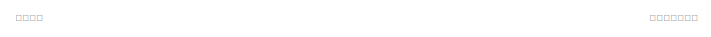
[diagram: root canvas - part 1/2, top center region]
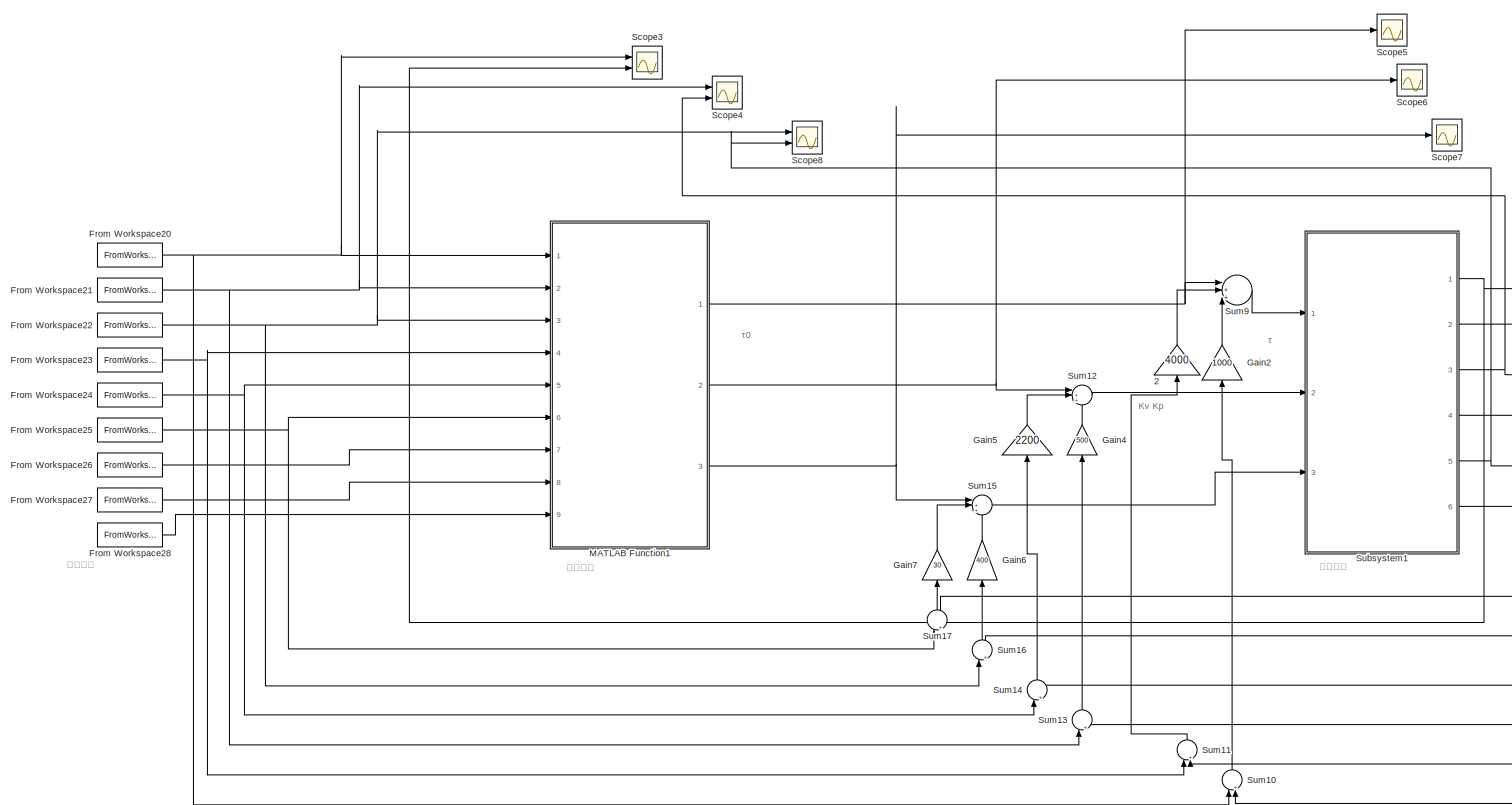
[diagram: root canvas - part 2/2, most of the canvas]
MODEL slx_a6d691054f92
KIND model
CONFIG AbsTol = auto
CONFIG EnableMultiTasking = off
CONFIG FixedStep = 0.00001
CONFIG MaxStep = 0.00001
CONFIG MinStep = 0.000005
CONFIG RelTol = 1e-3
CONFIG SampleTimeConstraint = Unconstrained
CONFIG Solver = ode45
CONFIG SolverName = ode45
CONFIG StartTime = 0.0
CONFIG StopTime = 36
BLOCK [Gain] 2
  Gain = 4000
  OutDataTypeStr = Inherit: Inherit via internal rule
  ParamDataTypeStr = Inherit: Inherit via internal rule
  SaturateOnIntegerOverflow = off
BLOCK [FromWorkspace] From Workspace20
  SampleTime = 0
  VariableName = q1
  ZeroCross = on
BLOCK [FromWorkspace] From Workspace21
  SampleTime = 0
  VariableName = q2
  ZeroCross = on
BLOCK [FromWorkspace] From Workspace22
  SampleTime = 0
  VariableName = q3
  ZeroCross = on
BLOCK [FromWorkspace] From Workspace23
  SampleTime = 0
  VariableName = qd1
  ZeroCross = on
BLOCK [FromWorkspace] From Workspace24
  SampleTime = 0
  VariableName = qd2
  ZeroCross = on
BLOCK [FromWorkspace] From Workspace25
  SampleTime = 0
  VariableName = qd3
  ZeroCross = on
BLOCK [FromWorkspace] From Workspace26
  SampleTime = 0
  VariableName = qdd1
  ZeroCross = on
BLOCK [FromWorkspace] From Workspace27
  SampleTime = 0
  VariableName = qdd2
  ZeroCross = on
BLOCK [FromWorkspace] From Workspace28
  SampleTime = 0
  VariableName = qdd3
  ZeroCross = on
BLOCK [Gain] Gain2
  Gain = 1000
  OutDataTypeStr = Inherit: Inherit via internal rule
  ParamDataTypeStr = Inherit: Inherit via internal rule
  SaturateOnIntegerOverflow = off
BLOCK [Gain] Gain4
  Gain = 500
  OutDataTypeStr = Inherit: Inherit via internal rule
  ParamDataTypeStr = Inherit: Inherit via internal rule
  SaturateOnIntegerOverflow = off
BLOCK [Gain] Gain5
  Gain = 2200
  OutDataTypeStr = Inherit: Inherit via internal rule
  ParamDataTypeStr = Inherit: Inherit via internal rule
  SaturateOnIntegerOverflow = off
BLOCK [Gain] Gain6
  Gain = 400
  OutDataTypeStr = Inherit: Inherit via internal rule
  ParamDataTypeStr = Inherit: Inherit via internal rule
  SaturateOnIntegerOverflow = off
BLOCK [Gain] Gain7
  Gain = 30
  OutDataTypeStr = Inherit: Inherit via internal rule
  ParamDataTypeStr = Inherit: Inherit via internal rule
  SaturateOnIntegerOverflow = off
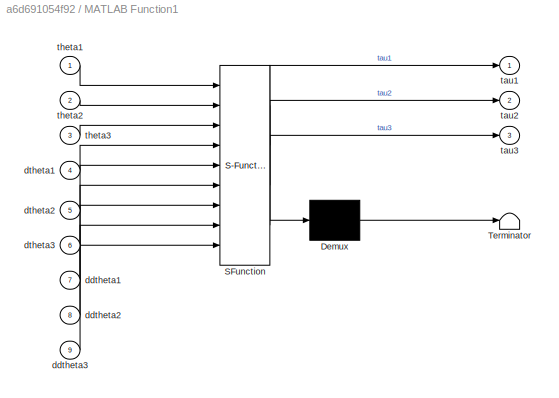
BLOCK [SubSystem] MATLAB Function1
  ErrorFcn = Stateflow.Translate.translate
  PermitHierarchicalResolution = ExplicitOnly
  Ports = [9, 3]
  RequestExecContextInheritance = off
  SFBlockType = MATLAB Function
  TreatAsAtomicUnit = on
BLOCK [Demux] MATLAB Function1/ Demux 
  Outputs = 1
  Ports = [1, 1]
BLOCK [S-Function] MATLAB Function1/ SFunction 
  EnableBusSupport = on
  FunctionName = sf_sfun
  PortCounts = [9 4]
  Ports = [9, 4]
  SFcnIsStateOwnerBlock = off
  SFunctionDeploymentMode = off
  Tag = Stateflow S-Function simulation 4
BLOCK [Terminator] MATLAB Function1/ Terminator 
BLOCK [Inport] MATLAB Function1/ddtheta1
  IconDisplay = Port number
  Port = 7
BLOCK [Inport] MATLAB Function1/ddtheta2
  IconDisplay = Port number
  Port = 8
BLOCK [Inport] MATLAB Function1/ddtheta3
  IconDisplay = Port number
  Port = 9
BLOCK [Inport] MATLAB Function1/dtheta1
  IconDisplay = Port number
  Port = 4
BLOCK [Inport] MATLAB Function1/dtheta2
  IconDisplay = Port number
  Port = 5
BLOCK [Inport] MATLAB Function1/dtheta3
  IconDisplay = Port number
  Port = 6
BLOCK [Outport] MATLAB Function1/tau1
  IconDisplay = Port number
BLOCK [Outport] MATLAB Function1/tau2
  IconDisplay = Port number
  Port = 2
BLOCK [Outport] MATLAB Function1/tau3
  IconDisplay = Port number
  Port = 3
BLOCK [Inport] MATLAB Function1/theta1
  IconDisplay = Port number
BLOCK [Inport] MATLAB Function1/theta2
  IconDisplay = Port number
  Port = 2
BLOCK [Inport] MATLAB Function1/theta3
  IconDisplay = Port number
  Port = 3
BLOCK [Scope] Scope3
  Floating = off
  NumInputPorts = 2
  Ports = [2]
  ScopeSpecificationString = Simulink.scopes.TimeScopeBlockCfg('CurrentConfiguration', extmgr.ConfigurationSet(extmgr.Configuration('Core','General UI',true),extmgr.Configuration('Core','Source UI',true),extmgr.Configuration('Sources','WiredSimulink',true,'DataLoggingVariableName','ScopeData1'),extmgr.Configuration('Visuals','Time Domain',true,'SerializedDisplays',{struct('MinYLimReal','-0.39421','MaxYLimReal','3.54787','YLab...<+1470ch>
BLOCK [Scope] Scope4
  Floating = off
  NumInputPorts = 2
  Ports = [2]
  ScopeSpecificationString = Simulink.scopes.TimeScopeBlockCfg('CurrentConfiguration', extmgr.ConfigurationSet(extmgr.Configuration('Core','General UI',true),extmgr.Configuration('Core','Source UI',true),extmgr.Configuration('Sources','WiredSimulink',true,'DataLoggingVariableName','ScopeData4'),extmgr.Configuration('Visuals','Time Domain',true,'SerializedDisplays',{struct('MinYLimReal','-3.07476','MaxYLimReal','0.34165','YLab...<+1469ch>
BLOCK [Scope] Scope5
  Floating = off
  NumInputPorts = 1
  Ports = [1]
  ScopeSpecificationString = Simulink.scopes.TimeScopeBlockCfg('CurrentConfiguration', extmgr.ConfigurationSet(extmgr.Configuration('Core','General UI',true),extmgr.Configuration('Core','Source UI',true),extmgr.Configuration('Sources','WiredSimulink',true,'DataLoggingVariableName','tau_p1','DataLogging',true),extmgr.Configuration('Visuals','Time Domain',true,'SerializedDisplays',{struct('MinYLimReal','-338.8881','MaxYLimReal'...<+1432ch>
BLOCK [Scope] Scope6
  Floating = off
  NumInputPorts = 1
  Ports = [1]
  ScopeSpecificationString = Simulink.scopes.TimeScopeBlockCfg('CurrentConfiguration', extmgr.ConfigurationSet(extmgr.Configuration('Core','General UI',true),extmgr.Configuration('Core','Source UI',true),extmgr.Configuration('Sources','WiredSimulink',true,'DataLoggingVariableName','tau_p2','DataLogging',true),extmgr.Configuration('Visuals','Time Domain',true,'SerializedDisplays',{struct('MinYLimReal','-22.49931','MaxYLimReal'...<+1405ch>
BLOCK [Scope] Scope7
  Floating = off
  NumInputPorts = 1
  Ports = [1]
  ScopeSpecificationString = Simulink.scopes.TimeScopeBlockCfg('CurrentConfiguration', extmgr.ConfigurationSet(extmgr.Configuration('Core','General UI',true),extmgr.Configuration('Core','Source UI',true),extmgr.Configuration('Sources','WiredSimulink',true,'DataLoggingVariableName','tau_p3','DataLogging',true),extmgr.Configuration('Visuals','Time Domain',true,'SerializedDisplays',{struct('MinYLimReal','48.2523','MaxYLimReal','...<+1397ch>
BLOCK [Scope] Scope8
  Floating = off
  NumInputPorts = 2
  Ports = [2]
  ScopeSpecificationString = Simulink.scopes.TimeScopeBlockCfg('CurrentConfiguration', extmgr.ConfigurationSet(extmgr.Configuration('Core','General UI',true),extmgr.Configuration('Core','Source UI',true),extmgr.Configuration('Sources','WiredSimulink',true,'DataLoggingVariableName','ScopeData11'),extmgr.Configuration('Visuals','Time Domain',true,'SerializedDisplays',{struct('MinYLimReal','-2.12296','MaxYLimReal','0.37301','YLa...<+1487ch>
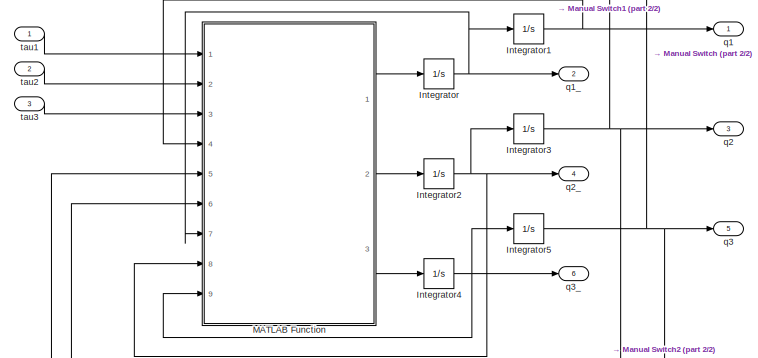
[diagram: Subsystem1 - part 1/2, middle left region]
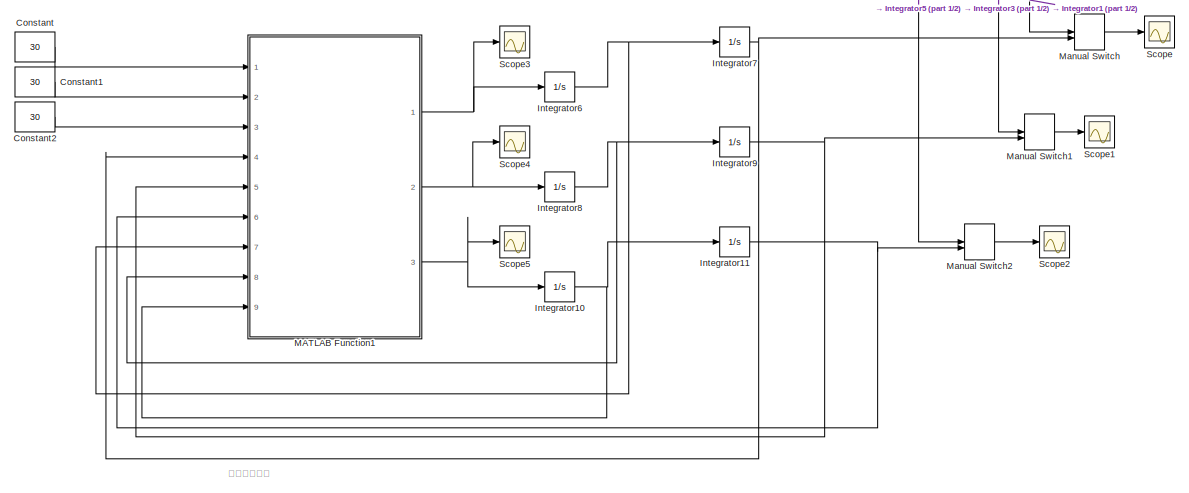
[diagram: Subsystem1 - part 2/2, right side, full height]
BLOCK [SubSystem] Subsystem1
  Ports = [3, 6]
  RequestExecContextInheritance = off
BLOCK [Constant] Subsystem1/Constant
  Commented = on
  Value = 30
BLOCK [Constant] Subsystem1/Constant1
  Commented = on
  Value = 30
BLOCK [Constant] Subsystem1/Constant2
  Commented = on
  Value = 30
BLOCK [Integrator] Subsystem1/Integrator
  LimitOutput = on
  LowerSaturationLimit = -1000
  Ports = [1, 1]
  UpperSaturationLimit = 1000
BLOCK [Integrator] Subsystem1/Integrator1
  LimitOutput = on
  LowerSaturationLimit = -1000
  Ports = [1, 1]
  UpperSaturationLimit = 1000
BLOCK [Integrator] Subsystem1/Integrator10
  Commented = on
  Ports = [1, 1]
BLOCK [Integrator] Subsystem1/Integrator11
  Commented = on
  Ports = [1, 1]
BLOCK [Integrator] Subsystem1/Integrator2
  LimitOutput = on
  LowerSaturationLimit = -1000
  Ports = [1, 1]
  UpperSaturationLimit = 1000
BLOCK [Integrator] Subsystem1/Integrator3
  LimitOutput = on
  LowerSaturationLimit = -1000
  Ports = [1, 1]
  UpperSaturationLimit = 1000
BLOCK [Integrator] Subsystem1/Integrator4
  LimitOutput = on
  LowerSaturationLimit = -1000
  Ports = [1, 1]
  UpperSaturationLimit = 1000
BLOCK [Integrator] Subsystem1/Integrator5
  LimitOutput = on
  LowerSaturationLimit = -1000
  Ports = [1, 1]
  UpperSaturationLimit = 1000
BLOCK [Integrator] Subsystem1/Integrator6
  Commented = on
  Ports = [1, 1]
BLOCK [Integrator] Subsystem1/Integrator7
  Commented = on
  Ports = [1, 1]
BLOCK [Integrator] Subsystem1/Integrator8
  Commented = on
  Ports = [1, 1]
BLOCK [Integrator] Subsystem1/Integrator9
  Commented = on
  Ports = [1, 1]
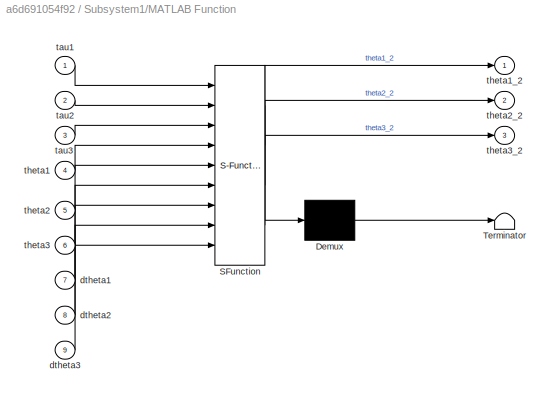
BLOCK [SubSystem] Subsystem1/MATLAB Function
  ErrorFcn = Stateflow.Translate.translate
  PermitHierarchicalResolution = ExplicitOnly
  Ports = [9, 3]
  RequestExecContextInheritance = off
  SFBlockType = MATLAB Function
  TreatAsAtomicUnit = on
BLOCK [Demux] Subsystem1/MATLAB Function/ Demux 
  Outputs = 1
  Ports = [1, 1]
BLOCK [S-Function] Subsystem1/MATLAB Function/ SFunction 
  EnableBusSupport = on
  FunctionName = sf_sfun
  PortCounts = [9 4]
  Ports = [9, 4]
  SFcnIsStateOwnerBlock = off
  SFunctionDeploymentMode = off
  Tag = Stateflow S-Function simulation 5
BLOCK [Terminator] Subsystem1/MATLAB Function/ Terminator 
BLOCK [Inport] Subsystem1/MATLAB Function/dtheta1
  IconDisplay = Port number
  Port = 7
BLOCK [Inport] Subsystem1/MATLAB Function/dtheta2
  IconDisplay = Port number
  Port = 8
BLOCK [Inport] Subsystem1/MATLAB Function/dtheta3
  IconDisplay = Port number
  Port = 9
BLOCK [Inport] Subsystem1/MATLAB Function/tau1
  IconDisplay = Port number
BLOCK [Inport] Subsystem1/MATLAB Function/tau2
  IconDisplay = Port number
  Port = 2
BLOCK [Inport] Subsystem1/MATLAB Function/tau3
  IconDisplay = Port number
  Port = 3
BLOCK [Inport] Subsystem1/MATLAB Function/theta1
  IconDisplay = Port number
  Port = 4
BLOCK [Outport] Subsystem1/MATLAB Function/theta1_2
  IconDisplay = Port number
BLOCK [Inport] Subsystem1/MATLAB Function/theta2
  IconDisplay = Port number
  Port = 5
BLOCK [Outport] Subsystem1/MATLAB Function/theta2_2
  IconDisplay = Port number
  Port = 2
BLOCK [Inport] Subsystem1/MATLAB Function/theta3
  IconDisplay = Port number
  Port = 6
BLOCK [Outport] Subsystem1/MATLAB Function/theta3_2
  IconDisplay = Port number
  Port = 3
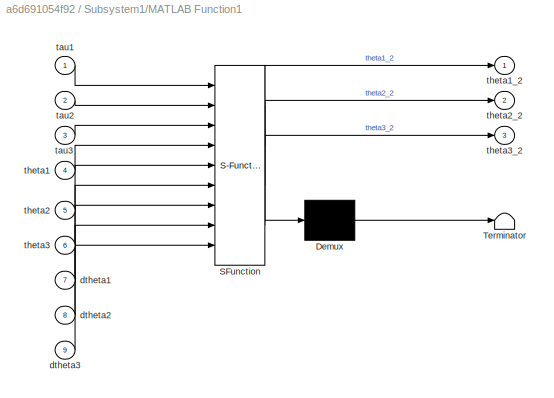
BLOCK [SubSystem] Subsystem1/MATLAB Function1
  Commented = on
  ErrorFcn = Stateflow.Translate.translate
  PermitHierarchicalResolution = ExplicitOnly
  Ports = [9, 3]
  RequestExecContextInheritance = off
  SFBlockType = MATLAB Function
  TreatAsAtomicUnit = on
BLOCK [Demux] Subsystem1/MATLAB Function1/ Demux 
  Outputs = 1
  Ports = [1, 1]
BLOCK [S-Function] Subsystem1/MATLAB Function1/ SFunction 
  EnableBusSupport = on
  FunctionName = sf_sfun
  PortCounts = [9 4]
  Ports = [9, 4]
  SFcnIsStateOwnerBlock = off
  SFunctionDeploymentMode = off
  Tag = Stateflow S-Function simulation 6
BLOCK [Terminator] Subsystem1/MATLAB Function1/ Terminator 
BLOCK [Inport] Subsystem1/MATLAB Function1/dtheta1
  IconDisplay = Port number
  Port = 7
BLOCK [Inport] Subsystem1/MATLAB Function1/dtheta2
  IconDisplay = Port number
  Port = 8
BLOCK [Inport] Subsystem1/MATLAB Function1/dtheta3
  IconDisplay = Port number
  Port = 9
BLOCK [Inport] Subsystem1/MATLAB Function1/tau1
  IconDisplay = Port number
BLOCK [Inport] Subsystem1/MATLAB Function1/tau2
  IconDisplay = Port number
  Port = 2
BLOCK [Inport] Subsystem1/MATLAB Function1/tau3
  IconDisplay = Port number
  Port = 3
BLOCK [Inport] Subsystem1/MATLAB Function1/theta1
  IconDisplay = Port number
  Port = 4
BLOCK [Outport] Subsystem1/MATLAB Function1/theta1_2
  IconDisplay = Port number
BLOCK [Inport] Subsystem1/MATLAB Function1/theta2
  IconDisplay = Port number
  Port = 5
BLOCK [Outport] Subsystem1/MATLAB Function1/theta2_2
  IconDisplay = Port number
  Port = 2
BLOCK [Inport] Subsystem1/MATLAB Function1/theta3
  IconDisplay = Port number
  Port = 6
BLOCK [Outport] Subsystem1/MATLAB Function1/theta3_2
  IconDisplay = Port number
  Port = 3
BLOCK [ManualSwitch] Subsystem1/Manual Switch
BLOCK [ManualSwitch] Subsystem1/Manual Switch1
BLOCK [ManualSwitch] Subsystem1/Manual Switch2
BLOCK [Scope] Subsystem1/Scope
  Floating = off
  NumInputPorts = 1
  Ports = [1]
  ScopeSpecificationString = Simulink.scopes.TimeScopeBlockCfg('CurrentConfiguration', extmgr.ConfigurationSet(extmgr.Configuration('Core','General UI',true),extmgr.Configuration('Core','Source UI',true),extmgr.Configuration('Sources','WiredSimulink',true,'DataLoggingVariableName','ScopeQ1','DataLogging',true),extmgr.Configuration('Visuals','Time Domain',true,'SerializedDisplays',{struct('MinYLimReal','-0.39291','MaxYLimReal'...<+1388ch>
BLOCK [Scope] Subsystem1/Scope1
  Floating = off
  NumInputPorts = 1
  Ports = [1]
  ScopeSpecificationString = Simulink.scopes.TimeScopeBlockCfg('CurrentConfiguration', extmgr.ConfigurationSet(extmgr.Configuration('Core','General UI',true),extmgr.Configuration('Core','Source UI',true),extmgr.Configuration('Sources','WiredSimulink',true,'DataLoggingVariableName','ScopeQ2','DataLogging',true),extmgr.Configuration('Visuals','Time Domain',true,'SerializedDisplays',{struct('MinYLimReal','-0.03812','MaxYLimReal'...<+1389ch>
BLOCK [Scope] Subsystem1/Scope2
  Floating = off
  NumInputPorts = 1
  Ports = [1]
  ScopeSpecificationString = Simulink.scopes.TimeScopeBlockCfg('CurrentConfiguration', extmgr.ConfigurationSet(extmgr.Configuration('Core','General UI',true),extmgr.Configuration('Core','Source UI',true),extmgr.Configuration('Sources','WiredSimulink',true,'DataLoggingVariableName','ScopeQ3','DataLogging',true),extmgr.Configuration('Visuals','Time Domain',true,'SerializedDisplays',{struct('MinYLimReal','-0.02399','MaxYLimReal'...<+1389ch>
BLOCK [Scope] Subsystem1/Scope3
  Commented = on
  Floating = off
  NumInputPorts = 1
  Ports = [1]
  ScopeSpecificationString = Simulink.scopes.TimeScopeBlockCfg('CurrentConfiguration', extmgr.ConfigurationSet(extmgr.Configuration('Core','General UI',true),extmgr.Configuration('Core','Source UI',true),extmgr.Configuration('Sources','WiredSimulink',true,'DataLoggingVariableName','ScopeData6'),extmgr.Configuration('Visuals','Time Domain',true,'SerializedDisplays',{struct('MinYLimReal','-36777.54931','MaxYLimReal','24574.6727...<+1491ch>
BLOCK [Scope] Subsystem1/Scope4
  Commented = on
  Floating = off
  NumInputPorts = 1
  Ports = [1]
  ScopeSpecificationString = Simulink.scopes.TimeScopeBlockCfg('CurrentConfiguration', extmgr.ConfigurationSet(extmgr.Configuration('Core','General UI',true),extmgr.Configuration('Core','Source UI',true),extmgr.Configuration('Sources','WiredSimulink',true,'DataLoggingVariableName','ScopeData7'),extmgr.Configuration('Visuals','Time Domain',true,'SerializedDisplays',{struct('MinYLimReal','-34.83697','MaxYLimReal','-33.84027','Y...<+1469ch>
BLOCK [Scope] Subsystem1/Scope5
  Commented = on
  Floating = off
  NumInputPorts = 1
  Ports = [1]
  ScopeSpecificationString = Simulink.scopes.TimeScopeBlockCfg('CurrentConfiguration', extmgr.ConfigurationSet(extmgr.Configuration('Core','General UI',true),extmgr.Configuration('Core','Source UI',true),extmgr.Configuration('Sources','WiredSimulink',true,'DataLoggingVariableName','ScopeData8'),extmgr.Configuration('Visuals','Time Domain',true,'SerializedDisplays',{struct('MinYLimReal','12.75397','MaxYLimReal','14.2683','YLab...<+1432ch>
BLOCK [Outport] Subsystem1/q1
  IconDisplay = Port number
BLOCK [Outport] Subsystem1/q1_
  IconDisplay = Port number
  Port = 2
BLOCK [Outport] Subsystem1/q2
  IconDisplay = Port number
  Port = 3
BLOCK [Outport] Subsystem1/q2_
  IconDisplay = Port number
  Port = 4
BLOCK [Outport] Subsystem1/q3
  IconDisplay = Port number
  Port = 5
BLOCK [Outport] Subsystem1/q3_
  IconDisplay = Port number
  Port = 6
BLOCK [Inport] Subsystem1/tau1
  IconDisplay = Port number
BLOCK [Inport] Subsystem1/tau2
  IconDisplay = Port number
  Port = 2
BLOCK [Inport] Subsystem1/tau3
  IconDisplay = Port number
  Port = 3
BLOCK [Sum] Sum10
  IconShape = round
  InputSameDT = off
  Inputs = |+-
  OutDataTypeStr = Inherit: Inherit via internal rule
  Ports = [2, 1]
  SaturateOnIntegerOverflow = off
BLOCK [Sum] Sum11
  IconShape = round
  InputSameDT = off
  Inputs = |+-
  OutDataTypeStr = Inherit: Inherit via internal rule
  Ports = [2, 1]
  SaturateOnIntegerOverflow = off
BLOCK [Sum] Sum12
  IconShape = round
  InputSameDT = off
  Inputs = |+++
  OutDataTypeStr = Inherit: Inherit via internal rule
  Ports = [3, 1]
  SaturateOnIntegerOverflow = off
BLOCK [Sum] Sum13
  IconShape = round
  InputSameDT = off
  Inputs = |+-
  OutDataTypeStr = Inherit: Inherit via internal rule
  Ports = [2, 1]
  SaturateOnIntegerOverflow = off
BLOCK [Sum] Sum14
  IconShape = round
  InputSameDT = off
  Inputs = |+-
  OutDataTypeStr = Inherit: Inherit via internal rule
  Ports = [2, 1]
  SaturateOnIntegerOverflow = off
BLOCK [Sum] Sum15
  IconShape = round
  InputSameDT = off
  Inputs = |+++
  OutDataTypeStr = Inherit: Inherit via internal rule
  Ports = [3, 1]
  SaturateOnIntegerOverflow = off
BLOCK [Sum] Sum16
  IconShape = round
  InputSameDT = off
  Inputs = |+-
  OutDataTypeStr = Inherit: Inherit via internal rule
  Ports = [2, 1]
  SaturateOnIntegerOverflow = off
BLOCK [Sum] Sum17
  IconShape = round
  InputSameDT = off
  Inputs = |+-
  OutDataTypeStr = Inherit: Inherit via internal rule
  Ports = [2, 1]
  SaturateOnIntegerOverflow = off
BLOCK [Sum] Sum9
  IconShape = round
  InputSameDT = off
  Inputs = |+++
  OutDataTypeStr = Inherit: Inherit via internal rule
  Ports = [3, 1]
  SaturateOnIntegerOverflow = off
ANNOTATION (root): Kv Kp
ANNOTATION (root): 开环控制量监测
ANNOTATION (root): 正动力学
ANNOTATION (root): 规划轨迹
ANNOTATION (root): 逆动力学
ANNOTATION (root): τ0
ANNOTATION (root): τ
ANNOTATION (root): 输出监测
ANNOTATION Subsystem1: 这边用来调试
LINE 2:1 -> Sum9:2
NET From Workspace20:1 -> MATLAB Function1:1, Scope3:1, Sum10:1
NET From Workspace21:1 -> MATLAB Function1:2, Scope4:1, Sum13:1
NET From Workspace22:1 -> MATLAB Function1:3, Scope8:1, Sum16:1
NET From Workspace23:1 -> MATLAB Function1:4, Sum11:1
NET From Workspace24:1 -> MATLAB Function1:5, Sum14:1
NET From Workspace25:1 -> MATLAB Function1:6, Sum17:1
LINE From Workspace26:1 -> MATLAB Function1:7
LINE From Workspace27:1 -> MATLAB Function1:8
LINE From Workspace28:1 -> MATLAB Function1:9
LINE Gain2:1 -> Sum9:3
LINE Gain4:1 -> Sum12:3
LINE Gain5:1 -> Sum12:2
LINE Gain6:1 -> Sum15:3
LINE Gain7:1 -> Sum15:2
NET MATLAB Function1:1 -> Scope5:1, Sum9:1
NET MATLAB Function1:2 -> Scope6:1, Sum12:1
NET MATLAB Function1:3 -> Scope7:1, Sum15:1
LINE Subsystem1/Constant1:1 -> Subsystem1/MATLAB Function1:2
LINE Subsystem1/Constant2:1 -> Subsystem1/MATLAB Function1:3
LINE Subsystem1/Constant:1 -> Subsystem1/MATLAB Function1:1
NET Subsystem1/Integrator10:1 -> Subsystem1/Integrator11:1, Subsystem1/MATLAB Function1:9
NET Subsystem1/Integrator11:1 -> Subsystem1/MATLAB Function1:6, Subsystem1/Manual Switch2:2
NET Subsystem1/Integrator1:1 -> Subsystem1/MATLAB Function:4, Subsystem1/Manual Switch:1, Subsystem1/q1:1
NET Subsystem1/Integrator2:1 -> Subsystem1/Integrator3:1, Subsystem1/MATLAB Function:8, Subsystem1/q2_:1
NET Subsystem1/Integrator3:1 -> Subsystem1/MATLAB Function:5, Subsystem1/Manual Switch1:1, Subsystem1/q2:1
NET Subsystem1/Integrator4:1 -> Subsystem1/Integrator5:1, Subsystem1/MATLAB Function:9, Subsystem1/q3_:1
NET Subsystem1/Integrator5:1 -> Subsystem1/MATLAB Function:6, Subsystem1/Manual Switch2:1, Subsystem1/q3:1
NET Subsystem1/Integrator6:1 -> Subsystem1/Integrator7:1, Subsystem1/MATLAB Function1:7
NET Subsystem1/Integrator7:1 -> Subsystem1/MATLAB Function1:4, Subsystem1/Manual Switch:2
NET Subsystem1/Integrator8:1 -> Subsystem1/Integrator9:1, Subsystem1/MATLAB Function1:8
NET Subsystem1/Integrator9:1 -> Subsystem1/MATLAB Function1:5, Subsystem1/Manual Switch1:2
NET Subsystem1/Integrator:1 -> Subsystem1/Integrator1:1, Subsystem1/MATLAB Function:7, Subsystem1/q1_:1
NET Subsystem1/MATLAB Function1:1 -> Subsystem1/Integrator6:1, Subsystem1/Scope3:1
NET Subsystem1/MATLAB Function1:2 -> Subsystem1/Integrator8:1, Subsystem1/Scope4:1
NET Subsystem1/MATLAB Function1:3 -> Subsystem1/Integrator10:1, Subsystem1/Scope5:1
LINE Subsystem1/MATLAB Function:1 -> Subsystem1/Integrator:1
LINE Subsystem1/MATLAB Function:2 -> Subsystem1/Integrator2:1
LINE Subsystem1/MATLAB Function:3 -> Subsystem1/Integrator4:1
LINE Subsystem1/Manual Switch1:1 -> Subsystem1/Scope1:1
LINE Subsystem1/Manual Switch2:1 -> Subsystem1/Scope2:1
LINE Subsystem1/Manual Switch:1 -> Subsystem1/Scope:1
LINE Subsystem1/tau1:1 -> Subsystem1/MATLAB Function:1
LINE Subsystem1/tau2:1 -> Subsystem1/MATLAB Function:2
LINE Subsystem1/tau3:1 -> Subsystem1/MATLAB Function:3
NET Subsystem1:1 -> Scope3:2, Sum10:2
LINE Subsystem1:2 -> Sum11:2
NET Subsystem1:3 -> Scope4:2, Sum13:2
LINE Subsystem1:4 -> Sum14:2
NET Subsystem1:5 -> Scope8:2, Sum16:2
LINE Subsystem1:6 -> Sum17:2
LINE Sum10:1 -> Gain2:1
LINE Sum11:1 -> 2:1
LINE Sum12:1 -> Subsystem1:2
LINE Sum13:1 -> Gain4:1
LINE Sum14:1 -> Gain5:1
LINE Sum15:1 -> Subsystem1:3
LINE Sum16:1 -> Gain6:1
LINE Sum17:1 -> Gain7:1
LINE Sum9:1 -> Subsystem1:1
note: NET lines group one-source signal fan-out (src -> all destinations, sorted); 1:1 wires keep LINE
CHART MATLAB Function1 states=1 transitions=1
  STATE_LABEL 'eML_blk_kernel()'
  STATE_LABEL 'SCRIPT:\nfunction [tau1,tau2,tau3] = fcu(theta1,theta2,theta3,dtheta1,dtheta2,dtheta3,ddtheta1,ddtheta2,ddtheta3)\n\n    m1 = 10;\n    m2 = 10;\n    m3 = 10;\n    L1 = 1;\n    L2 = 1;\n    L3 = 1;\n    g = 10;\n    \n    A = [(L1^2*m1)/3 + L1^2*m2 + (L2^2*m2)/3 + (L3^2*m3)/12 + (m3*((L1 + L3/2 + L1*cos(theta2))*(2*L1 + L3 + 2*L1*cos(theta2)) + (L3 - 2*L1*sin(theta2))*(L3/2 - L1*sin(theta2))))/2 + L1*L2*m2 (L...<+1752ch>'
CHART Subsystem1/MATLAB Function states=1 transitions=1
  STATE_LABEL 'eML_blk_kernel()'
  STATE_LABEL 'SCRIPT:\nfunction [theta1_2 , theta2_2,theta3_2] = getTheta12(tau1,tau2,tau3,theta1,theta2,theta3,dtheta1,dtheta2,dtheta3)\n    \n    m1 = 10;\n    m2 = 10;\n    m3 = 10;\n    L1 = 1;\n    L2 = 1;\n    L3 = 1;\n    g = 10;\n\nA=[(L1^2*m1)/3 + L1^2*m2 + (L2^2*m2)/3 + (L3^2*m3)/12 + (m3*((L1 + L3/2 + L1*cos(theta2))*(2*L1 + L3 + 2*L1*cos(theta2)) + (L3 - 2*L1*sin(theta2))*(L3/2 - L1*sin(theta2))))/2 + L1*L2*m2...<+1742ch>'
CHART Subsystem1/MATLAB Function1 states=1 transitions=1
  STATE_LABEL 'eML_blk_kernel()'
  STATE_LABEL 'SCRIPT:\nfunction [theta1_2 , theta2_2,theta3_2] = getTheta12(tau1,tau2,tau3,theta1,theta2,theta3,dtheta1,dtheta2,dtheta3)\n    \n    m1 = 10;\n    m2 = 10;\n    m3 = 10;\n    L1 = 1;\n    L2 = 1;\n    L3 = 1;\n    g = 10;\n\nA=[(L1^2*m1)/3 + L1^2*m2 + (L2^2*m2)/3 + (L3^2*m3)/12 + (m3*((L1 + L3/2 + L1*cos(theta2))*(2*L1 + L3 + 2*L1*cos(theta2)) + (L3 - 2*L1*sin(theta2))*(L3/2 - L1*sin(theta2))))/2 + L1*L2*m2...<+1747ch>'
